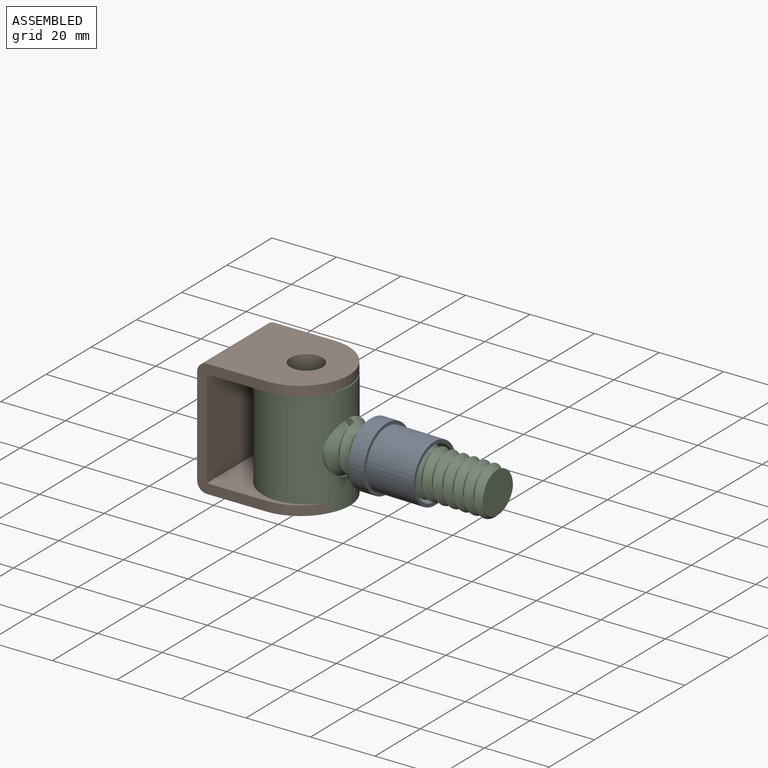
[diagram: assembled view]
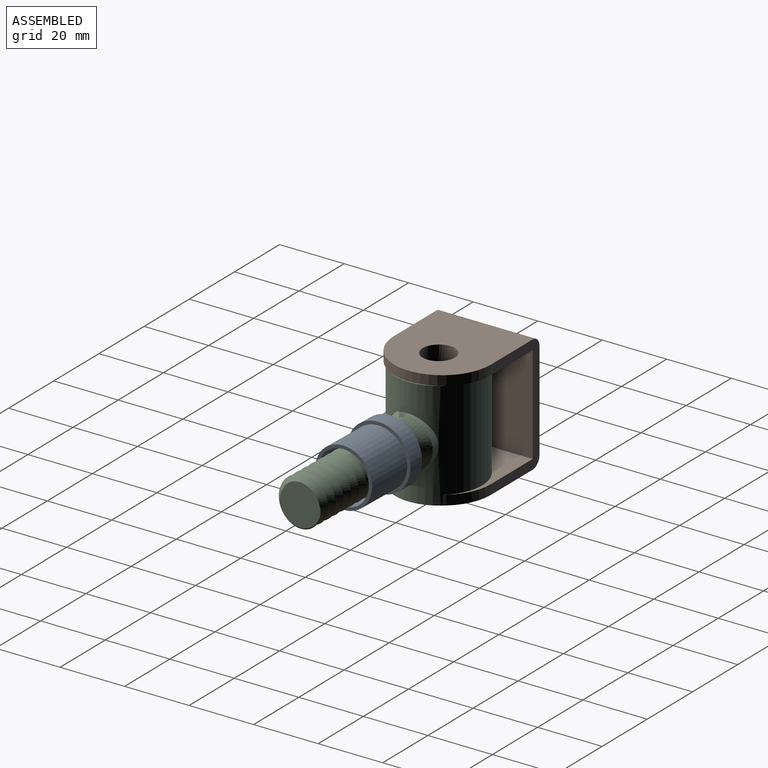
[diagram: assembled view, second angle]
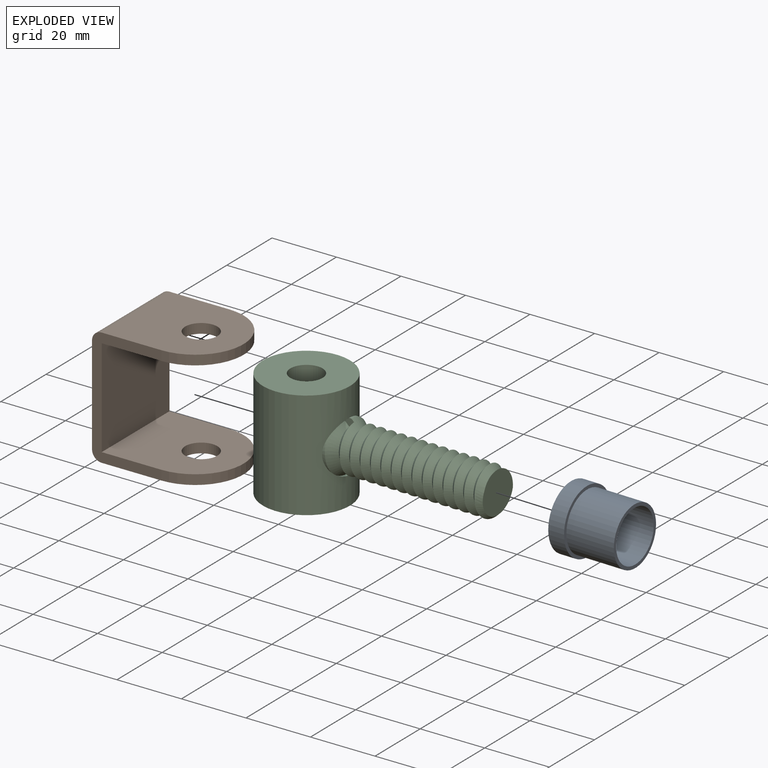
[diagram: exploded view]
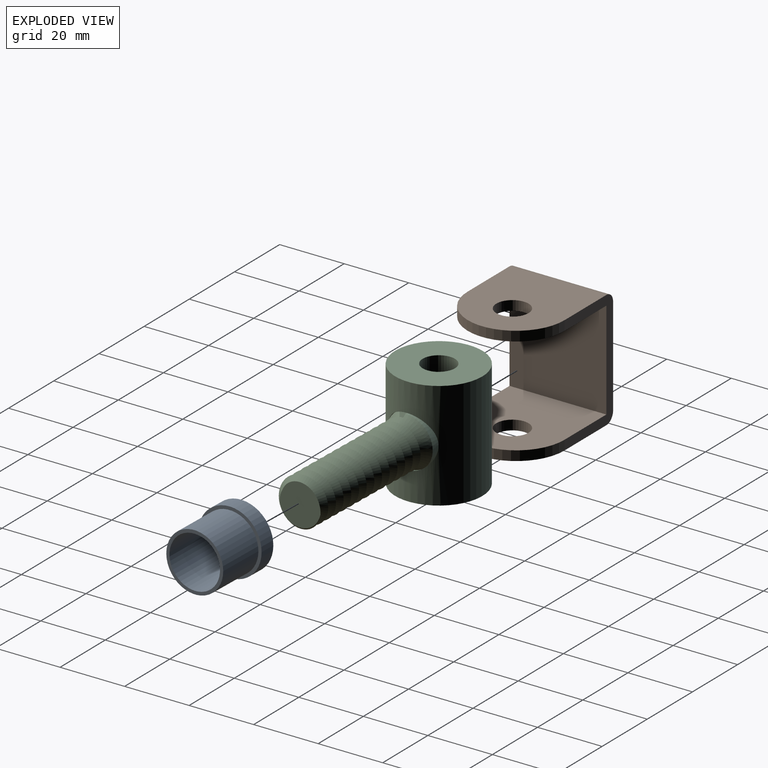
[diagram: exploded view, second angle]
ASSEMBLY  parts=3 mates=2
PART A: 6 faces, bbox 20x20x20 mm
  f0: cylinder r=10mm len=20mm, axis (-1,0,0), area 314.2mm2, adj f1,f2
  f1: plane 20x20mm, normal (1,0,0), area 59.7mm2, adj f0,f3
  f2: plane 20x20mm, normal (-1,0,0), area 113.1mm2, adj f0,f5
  f3: cylinder r=9mm len=18mm, axis (-1,0,0), area 848.2mm2, adj f1,f4
  f4: plane 18x18mm, normal (1,0,0), area 53.4mm2, adj f3,f5
  f5: cylinder r=8mm len=20mm, axis (1,0,0), area 1005.3mm2, adj f2,f4
PART B: 14 faces, bbox 36.5x30x36.5 mm
  f0: plane 33.5x30mm, normal (0,0,1), area 829.9mm2, adj f1,f6,f7,f9,f10
  f1: plane 30.5x30mm, normal (1,0,0), area 915mm2, adj f0,f2,f6,f7
  f2: plane 33.5x30mm, normal (0,0,-1), area 829.9mm2, adj f1,f6,f7,f8,f11
  f3: plane 33.5x30mm, normal (0,0,1), area 829.9mm2, adj f6,f7,f8,f11,f12
  f4: plane 30.5x30mm, normal (-1,0,0), area 915mm2, adj f6,f7,f12,f13
  f5: plane 33.5x30mm, normal (0,0,-1), area 829.9mm2, adj f6,f7,f9,f10,f13
  f6: plane 36.5x21.5mm, normal (0,-1,0), area 216.6mm2, adj f0,f1,f2,f3,f4,f5,f8,f9
  f7: plane 36.5x21.5mm, normal (0,1,0), area 216.6mm2, adj f0,f1,f2,f3,f4,f5,f8,f9
  f8: cylinder r=15mm len=30mm, axis (0,0,-1), area 141.4mm2, adj f2,f3,f6,f7
  f9: cylinder r=15mm len=30mm, axis (0,0,-1), area 141.4mm2, adj f0,f5,f6,f7
  f10: cylinder r=5mm len=10mm, axis (0,0,1), area 94.2mm2, adj f0,f5
  f11: cylinder r=5mm len=10mm, axis (0,0,1), area 94.2mm2, adj f2,f3
  f12: cylinder r=3mm len=30mm, axis (0,1,0), area 141.4mm2, adj f3,f4,f6,f7
  f13: cylinder r=3mm len=30mm, axis (0,-1,0), area 141.4mm2, adj f4,f5,f6,f7
PART C: 16 faces, bbox 28.4x77x34.9 mm
  f0: cylinder r=8mm len=9.19mm, axis (0,1,0), area 0mm2, adj f1,f9
  f1: bspline ~18.48x16mm, area 55.1mm2, adj f0,f2,f3,f6,f7,f8
  f2: cylinder r=8mm len=14.88mm, axis (0,1,0), area 32.1mm2, adj f1,f6,f9
  f3: bspline ~50.36x16.64mm, area 1424.1mm2, adj f1,f4,f5,f6
  f4: plane 14.29x14.13mm, normal (0,-1,0), area 127.8mm2, adj f3,f5
  f5: bspline ~48.44x16.64mm, area 1261.7mm2, adj f3,f4,f6
  f6: plane 4.11x2.49mm, normal (-1,0,0), area 5.4mm2, adj f1,f2,f3,f5,f7
  f7: cylinder r=8mm len=7.06mm, axis (0,1,0), area 11mm2, adj f1,f6,f9
  f8: cylinder r=8mm len=9.98mm, axis (0,1,0), area 0mm2, adj f1,f9
  f9: cylinder r=13.5mm len=33.5mm, axis (0,0,-1), area 2636.5mm2, adj f0,f2,f7,f8,f10,f15
  f10: plane 27x27mm, normal (0,0,-1), area 494mm2, adj f9,f11
  f11: cylinder r=5mm len=33.5mm, axis (0,0,1), area 827.8mm2, adj f10,f12,f13,f14,f15
  f12: cylinder r=8mm len=10mm, axis (0,1,0), area 41.5mm2, adj f11,f14
  f13: cylinder r=8mm len=10mm, axis (0,1,0), area 41.5mm2, adj f11,f14
  f14: plane 16x10mm, normal (0,1,0), area 148.9mm2, adj f11,f12,f13
  f15: plane 27x27mm, normal (0,0,1), area 494mm2, adj f9,f11
PLACE A rot(axis=(0,0,-1),1.6deg) t=(17.33,-3.46,1.15)mm
PLACE B t=(9.96,12,-6.69)mm fixed
PLACE C rot(axis=(0,0,1),88.4deg) t=(-3.24,-2.89,-15.57)mm
MATE revolute B.f10 <-> C.f9  axis (0,0,1) through (-3.24,-2.89,17.93)mm
MATE slider A.f0 <-> C.f0  axis (1,-0.03,0) through (37.32,-4.02,1.15)mm
